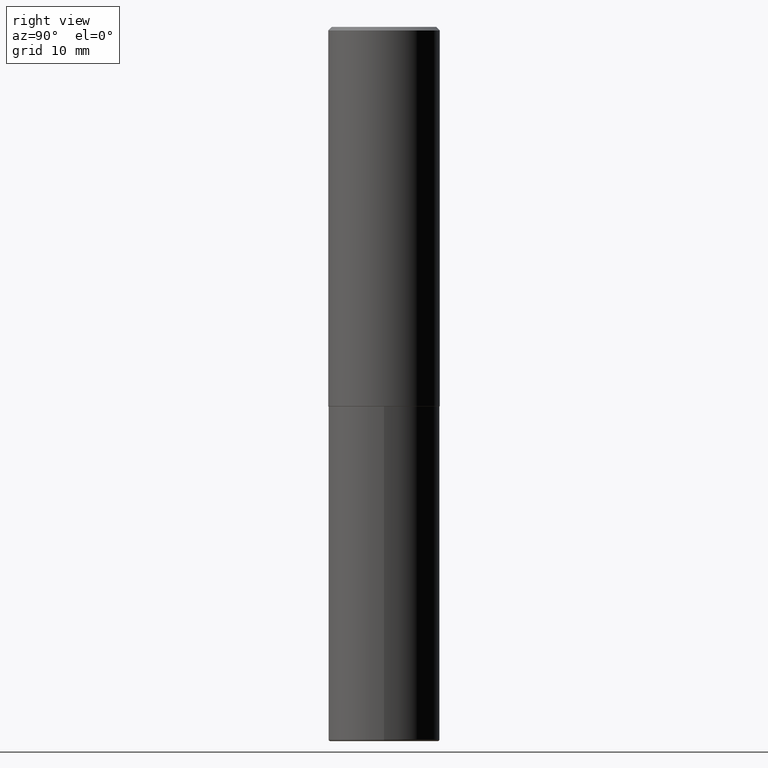
[diagram: clean part render]
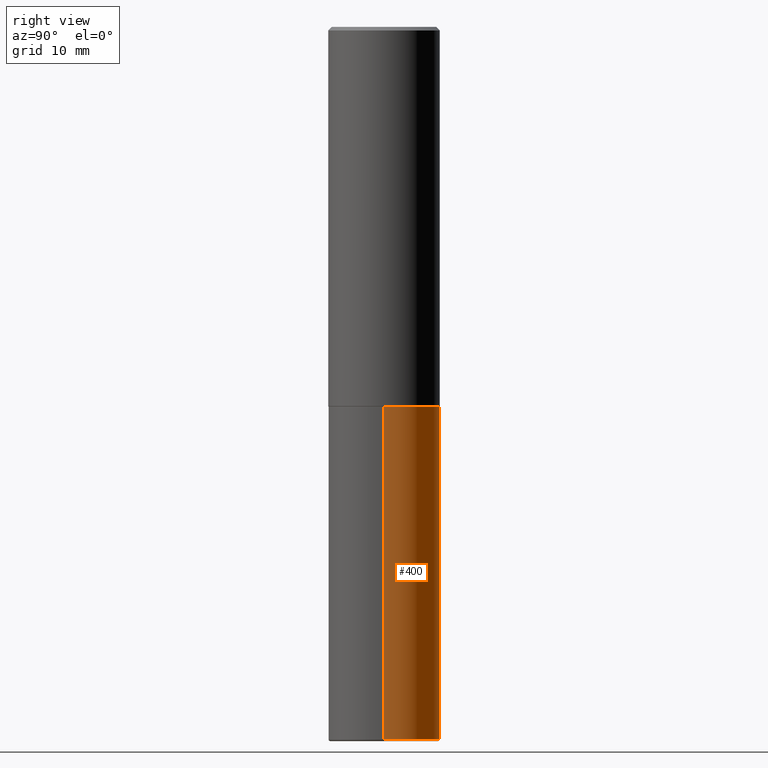
[diagram: same view with one face highlighted and labeled with its STEP entity id]
A machine part, right view. The second image highlights one B-rep face of the part: STEP entity #400.
In plain terms, the highlighted cylindrical surface (partial cylindrical patch) has radius 7.9375 mm, axis along (-0, 0, 1).
Its self-contained STEP definition (entity closure, byte-faithful):
#6 = EDGE_CURVE ( 'NONE', #314, #68, #126, .T. ) ;
#14 = ORIENTED_EDGE ( 'NONE', *, *, #407, .T. ) ;
#22 = ORIENTED_EDGE ( 'NONE', *, *, #308, .F. ) ;
#23 = DIRECTION ( 'NONE',  ( 1.000000000000000000, -6.982962677686266711E-15, 4.876176775795936353E-29 ) ) ;
#37 = VECTOR ( 'NONE', #215, 39.37007874015748143 ) ;
#46 = DIRECTION ( 'NONE',  ( -2.445468806185136597E-29, 3.491481338843145583E-15, 1.000000000000000000 ) ) ;
#64 = EDGE_CURVE ( 'NONE', #267, #68, #146, .T. ) ;
#68 = VERTEX_POINT ( 'NONE', #94 ) ;
#74 = CARTESIAN_POINT ( 'NONE',  ( 0.000000000000000000, 0.000000000000000000, 0.000000000000000000 ) ) ;
#82 = AXIS2_PLACEMENT_3D ( 'NONE', #74, #401, #23 ) ;
#84 = CARTESIAN_POINT ( 'NONE',  ( 5.196621213143414147E-29, -7.419397845041682046E-15, -2.124999999999999556 ) ) ;
#94 = CARTESIAN_POINT ( 'NONE',  ( -0.3125000000000000000, -8.454758144262601705E-15, -2.124999999999999556 ) ) ;
#106 = AXIS2_PLACEMENT_3D ( 'NONE', #84, #346, #378 ) ;
#107 = CARTESIAN_POINT ( 'NONE',  ( 0.3125000000000000000, -1.611318637876110745E-14, -3.989999999999999769 ) ) ;
#109 = DIRECTION ( 'NONE',  ( -2.445468806185136877E-29, 3.491481338843145188E-15, 1.000000000000000000 ) ) ;
#126 = LINE ( 'NONE', #343, #37 ) ;
#129 = ORIENTED_EDGE ( 'NONE', *, *, #6, .T. ) ;
#142 = VERTEX_POINT ( 'NONE', #107 ) ;
#146 = CIRCLE ( 'NONE', #106, 0.3125000000000000000 ) ;
#165 = VECTOR ( 'NONE', #109, 39.37007874015748143 ) ;
#168 = DIRECTION ( 'NONE',  ( 1.000000000000000000, -6.982962677686268288E-15, 0.000000000000000000 ) ) ;
#173 = CARTESIAN_POINT ( 'NONE',  ( -0.3125000000000000000, -1.171056449273383602E-14, -3.989999999999999769 ) ) ;
#193 = CIRCLE ( 'NONE', #356, 0.3125000000000000555 ) ;
#215 = DIRECTION ( 'NONE',  ( -2.445468806185136877E-29, 3.491481338843145188E-15, 1.000000000000000000 ) ) ;
#226 = EDGE_LOOP ( 'NONE', ( #14, #129, #258, #22 ) ) ;
#227 = FACE_OUTER_BOUND ( 'NONE', #226, .T. ) ;
#229 = CARTESIAN_POINT ( 'NONE',  ( 9.757420536678694842E-29, -1.393101054198414910E-14, -3.989999999999999769 ) ) ;
#258 = ORIENTED_EDGE ( 'NONE', *, *, #64, .F. ) ;
#263 = LINE ( 'NONE', #302, #165 ) ;
#267 = VERTEX_POINT ( 'NONE', #381 ) ;
#302 = CARTESIAN_POINT ( 'NONE',  ( 0.3125000000000000000, -2.182175836776958347E-15, 1.523805242436230075E-29 ) ) ;
#308 = EDGE_CURVE ( 'NONE', #142, #267, #263, .T. ) ;
#314 = VERTEX_POINT ( 'NONE', #173 ) ;
#343 = CARTESIAN_POINT ( 'NONE',  ( -0.3125000000000000000, 2.220446049250313081E-15, -1.537167215704658232E-29 ) ) ;
#346 = DIRECTION ( 'NONE',  ( -2.445468806185136597E-29, 3.491481338843145583E-15, 1.000000000000000000 ) ) ;
#356 = AXIS2_PLACEMENT_3D ( 'NONE', #229, #46, #168 ) ;
#363 = CYLINDRICAL_SURFACE ( 'NONE', #82, 0.3125000000000000000 ) ;
#378 = DIRECTION ( 'NONE',  ( 1.000000000000000000, -6.982962677686265133E-15, 0.000000000000000000 ) ) ;
#381 = CARTESIAN_POINT ( 'NONE',  ( 0.3125000000000000000, -9.601573681818640393E-15, -2.124999999999999556 ) ) ;
#400 = ADVANCED_FACE ( 'NONE', ( #227 ), #363, .T. ) ;
#401 = DIRECTION ( 'NONE',  ( -2.445468806185136597E-29, 3.491481338843145583E-15, 1.000000000000000000 ) ) ;
#407 = EDGE_CURVE ( 'NONE', #142, #314, #193, .T. ) ;